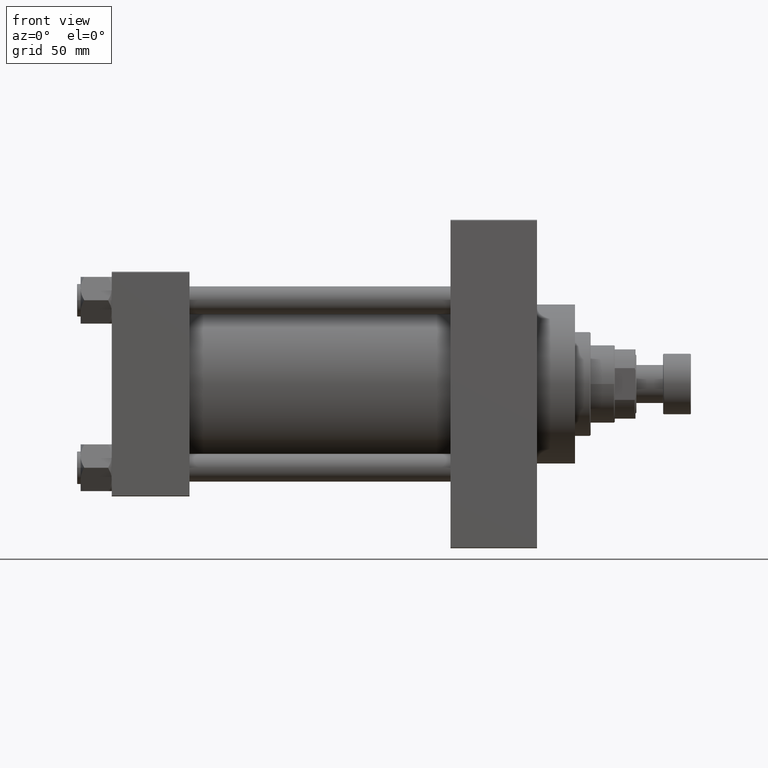
[diagram: clean part render]
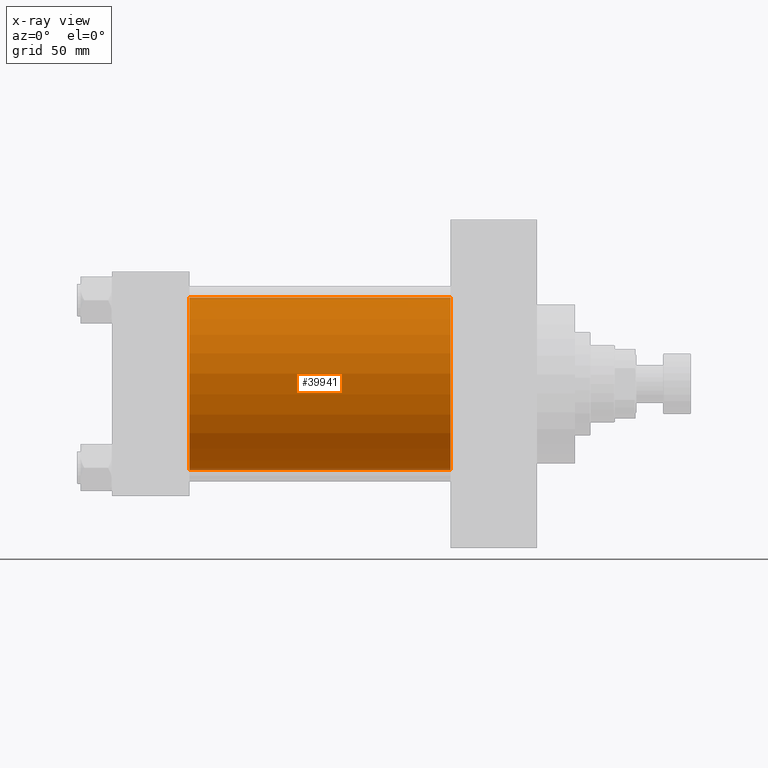
[diagram: x-ray — body ghosted, one internal face saturated and labeled with its STEP entity id]
A machine part, front view, then the same camera in x-ray: the body is ghosted and one INTERNAL B-rep face — a face not visible from any outside direction — is saturated and labeled: STEP entity #39941.
In plain terms, the highlighted cylindrical surface (partial cylindrical patch) has radius 50 mm, axis along (-1, -0, -0).
Its self-contained STEP definition (entity closure, byte-faithful):
#147 = EDGE_LOOP ( 'NONE', ( #19868, #22452, #44091, #5512 ) ) ;
#536 = EDGE_CURVE ( 'NONE', #7060, #38714, #40176, .T. ) ;
#2785 = CARTESIAN_POINT ( 'NONE',  ( 196.0000000000000000, 3.521148781771555838E-15, -50.00000000000000000 ) ) ;
#5512 = ORIENTED_EDGE ( 'NONE', *, *, #22301, .F. ) ;
#6873 = VERTEX_POINT ( 'NONE', #44383 ) ;
#7060 = VERTEX_POINT ( 'NONE', #44323 ) ;
#7069 = VERTEX_POINT ( 'NONE', #14648 ) ;
#7641 = FACE_OUTER_BOUND ( 'NONE', #147, .T. ) ;
#9524 = CARTESIAN_POINT ( 'NONE',  ( 196.0000000000000000, -2.602085213965210642E-15, 0.000000000000000000 ) ) ;
#12242 = DIRECTION ( 'NONE',  ( 1.000000000000000000, 0.000000000000000000, 0.000000000000000000 ) ) ;
#12477 = CARTESIAN_POINT ( 'NONE',  ( 45.00000000000000000, -2.602085213965210642E-15, 0.000000000000000000 ) ) ;
#12987 = AXIS2_PLACEMENT_3D ( 'NONE', #9524, #47002, #14152 ) ;
#14152 = DIRECTION ( 'NONE',  ( 0.000000000000000000, 0.000000000000000000, -1.000000000000000000 ) ) ;
#14483 = DIRECTION ( 'NONE',  ( -1.000000000000000000, -0.000000000000000000, -0.000000000000000000 ) ) ;
#14648 = CARTESIAN_POINT ( 'NONE',  ( 45.00000000000000000, -2.602085213965210642E-15, 50.00000000000000000 ) ) ;
#14724 = CYLINDRICAL_SURFACE ( 'NONE', #22745, 50.00000000000000000 ) ;
#14828 = CIRCLE ( 'NONE', #34229, 50.00000000000000000 ) ;
#19868 = ORIENTED_EDGE ( 'NONE', *, *, #536, .T. ) ;
#21538 = CARTESIAN_POINT ( 'NONE',  ( 196.0000000000000000, -2.602085213965210642E-15, 0.000000000000000000 ) ) ;
#21679 = EDGE_CURVE ( 'NONE', #7069, #6873, #14828, .T. ) ;
#21994 = DIRECTION ( 'NONE',  ( -1.000000000000000000, -0.000000000000000000, -0.000000000000000000 ) ) ;
#22301 = EDGE_CURVE ( 'NONE', #7060, #7069, #27413, .T. ) ;
#22452 = ORIENTED_EDGE ( 'NONE', *, *, #30404, .T. ) ;
#22745 = AXIS2_PLACEMENT_3D ( 'NONE', #21538, #14483, #33689 ) ;
#23275 = CARTESIAN_POINT ( 'NONE',  ( 196.0000000000000000, -2.602085213965210642E-15, 50.00000000000000000 ) ) ;
#23650 = VECTOR ( 'NONE', #21994, 1000.000000000000000 ) ;
#27413 = LINE ( 'NONE', #23275, #29640 ) ;
#27652 = DIRECTION ( 'NONE',  ( -1.000000000000000000, -0.000000000000000000, -0.000000000000000000 ) ) ;
#29640 = VECTOR ( 'NONE', #27652, 1000.000000000000000 ) ;
#30404 = EDGE_CURVE ( 'NONE', #38714, #6873, #44134, .T. ) ;
#33689 = DIRECTION ( 'NONE',  ( 0.000000000000000000, 0.000000000000000000, 1.000000000000000000 ) ) ;
#34229 = AXIS2_PLACEMENT_3D ( 'NONE', #12477, #12242, #45340 ) ;
#38714 = VERTEX_POINT ( 'NONE', #42747 ) ;
#39941 = ADVANCED_FACE ( 'NONE', ( #7641 ), #14724, .F. ) ;
#40176 = CIRCLE ( 'NONE', #12987, 50.00000000000000000 ) ;
#42747 = CARTESIAN_POINT ( 'NONE',  ( 196.0000000000000000, 3.521148781771555838E-15, -50.00000000000000000 ) ) ;
#44091 = ORIENTED_EDGE ( 'NONE', *, *, #21679, .F. ) ;
#44134 = LINE ( 'NONE', #2785, #23650 ) ;
#44323 = CARTESIAN_POINT ( 'NONE',  ( 196.0000000000000000, -2.602085213965210642E-15, 50.00000000000000000 ) ) ;
#44383 = CARTESIAN_POINT ( 'NONE',  ( 45.00000000000000000, 3.521148781771555838E-15, -50.00000000000000000 ) ) ;
#45340 = DIRECTION ( 'NONE',  ( 0.000000000000000000, 0.000000000000000000, -1.000000000000000000 ) ) ;
#47002 = DIRECTION ( 'NONE',  ( 1.000000000000000000, 0.000000000000000000, 0.000000000000000000 ) ) ;